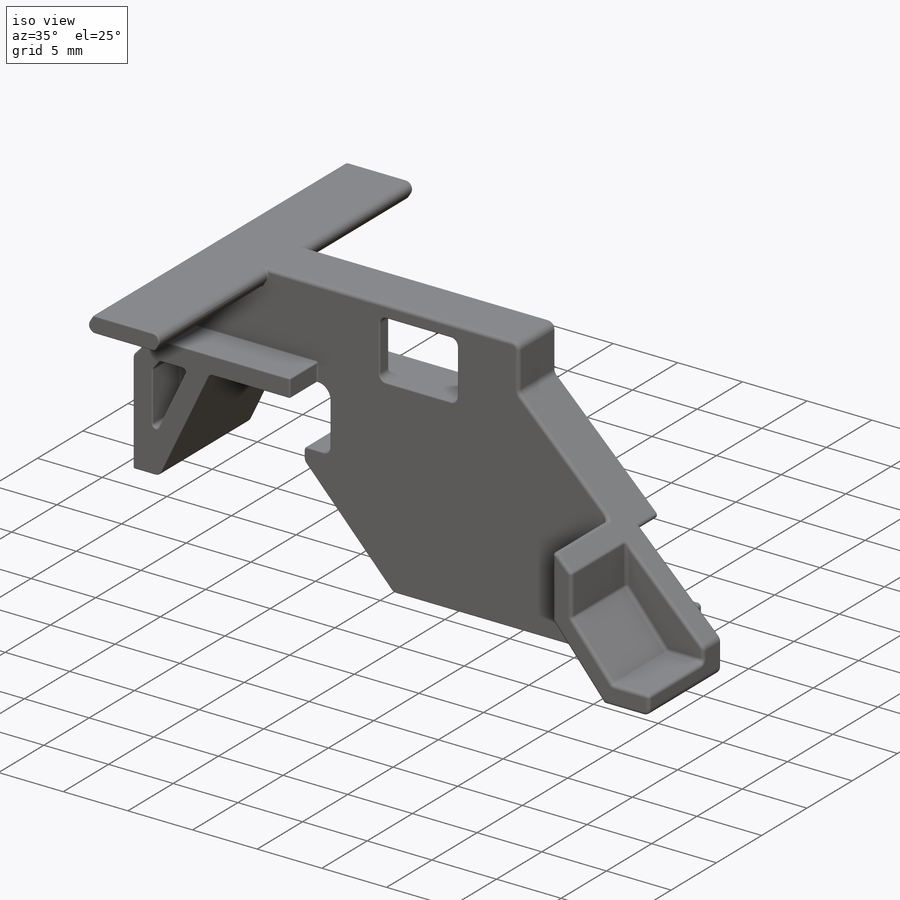
[diagram: iso view]
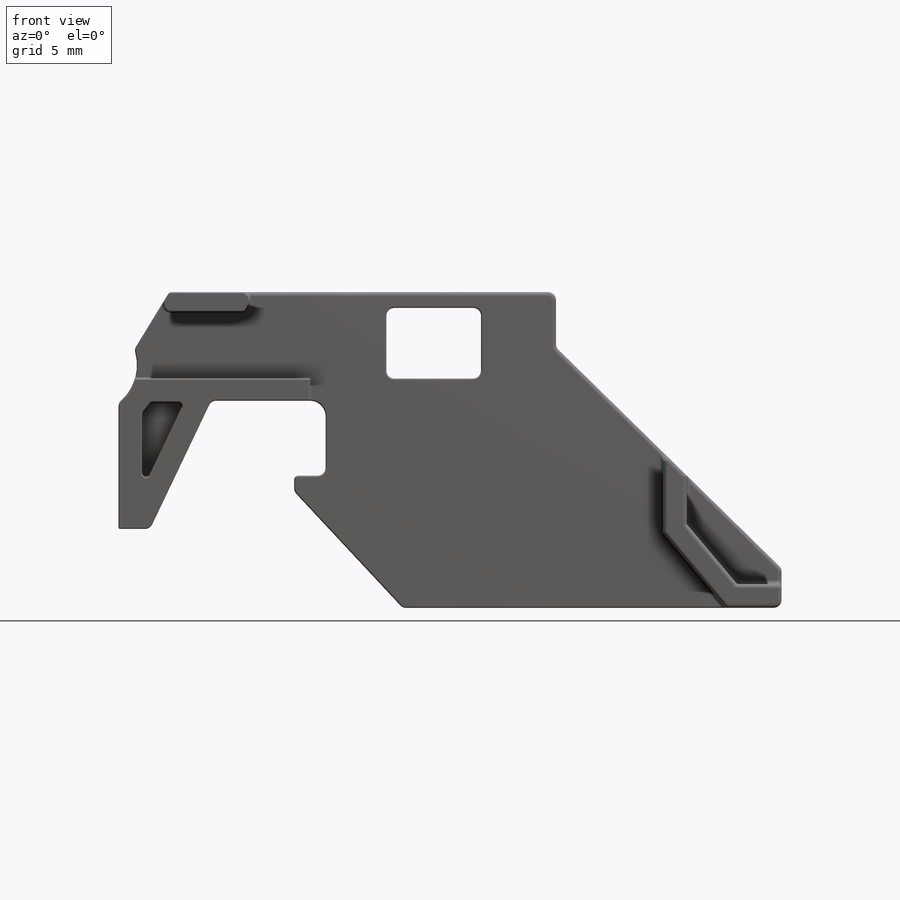
[diagram: front view]
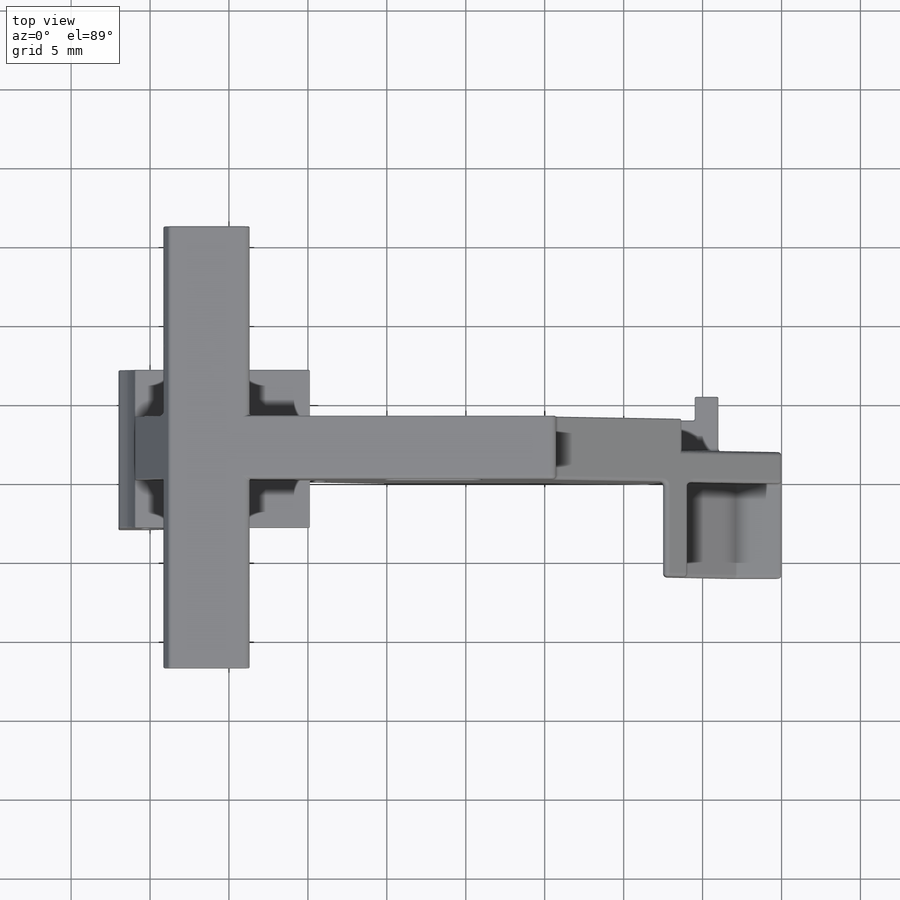
[diagram: top view]
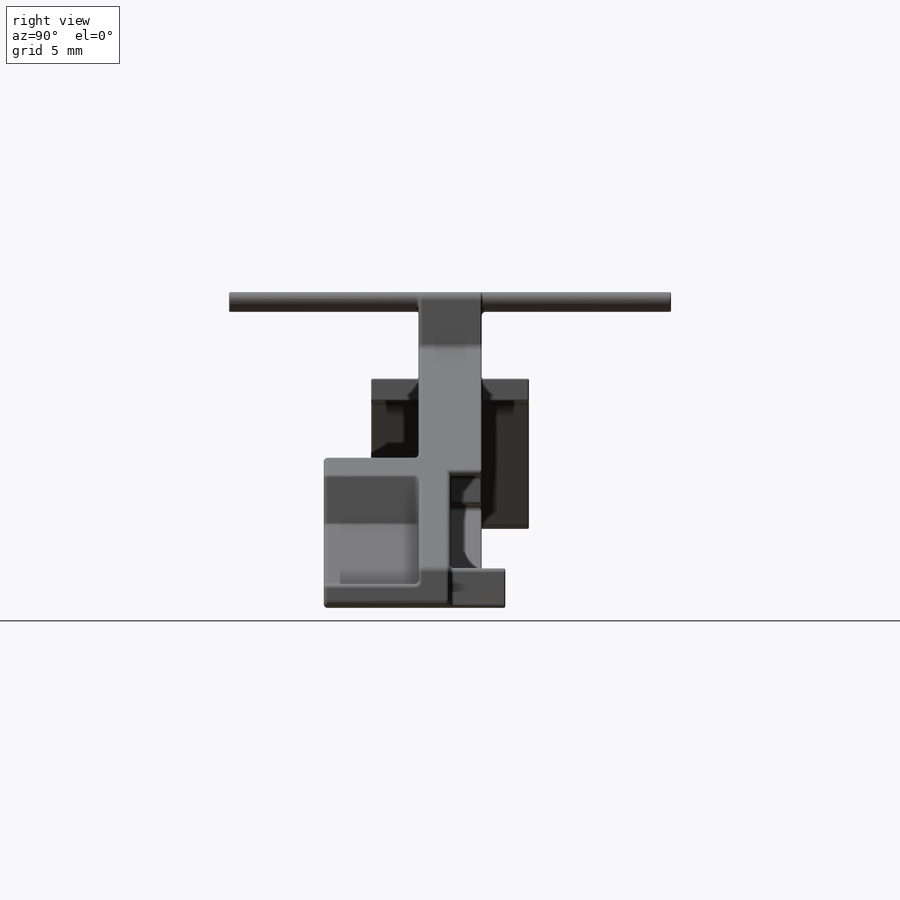
[diagram: right view]
SOLIDWORKS PART (.sldprt)
format: sldprt  version: not decoded by parser v0  size: 1,383,424 bytes
history: native  units: mm
features: sketch x10, fillet x7, extrude x5, cut_extrude x4, material x1, plane x1 (+11 scaffold rows collapsed)
feature tree (39):
  scaffold x11  (default folders/planes/origin — collapsed)
  material  "Material <not specified>"
  sketch  "Sketch1"  dims[c1.D6=~2.843355mm c1.D12=~3.100365mm c1.D18=3.0mm c1.D1=2.5mm c1.D2=20.0mm c1.D3=3.5mm c1.D4=24.5mm c1.D5=4.25mm c2.D6=8.0mm c2.D7=2.0mm c2.D8=9.0mm c2.D9=7.25mm c2.D10=4.75mm c2.D11=2.0mm c2.D12=10.0mm c2.D13=24.5mm c3.D13=~0.14098deg c4.D13=24.5mm c5.D13=~0.14098deg c6.D13=20.0mm c6.D14=42.0mm c6.D15=1.0mm c6.D16=10.0mm c6.D12=24.0mm c6.D17=15.0mm c6.D19=1.0mm c6.D20=24.0mm c7.D20=~132.817424deg c8.D20=~2.817791mm c8.D16=~11.81135mm c9.D16=137.0deg]
  extrude  "Boss-Extrude1"  Depth=4mm
  fillet  "Fillet1"  Radius=1mm
  sketch  "Sketch2"  dims[D1=1.25mm D2=6.25mm]
  extrude  "Boss-Extrude2"  Depth=12mm
  sketch  "Sketch3"  dims[D1=1.5mm]
  extrude  "Boss-Extrude3"  Depth=3mm
  sketch  "Sketch4"  dims[c1.D1=~2.335227mm c1.D2=~5.535352mm c2.D1=6.0mm c2.D2=4.47mm c2.D3=1.0mm c2.D4=4.75mm c2.D5=6.0mm]
  cut_extrude  "Cut-Extrude1"  Depth=14mm
  sketch  "Sketch5"  dims[c1.D1=1.5mm c1.D2=~9.654975mm c2.D2=~179.427004deg c3.D2=1.5mm c3.D3=1.5mm c3.D4=4.75mm c3.D5=7.5mm c3.D6=4.75mm c4.D6=140.0deg]
  extrude  "Boss-Extrude4"  Depth=6mm
  sketch  "Sketch6"  dims[c1.D1=4.0mm c1.D2=2.5mm c1.D3=10.0mm c2.D3=~177.817424deg c3.D3=1.5mm c3.D4=3.0mm c3.D5=0.0mm c3.D6=5.5mm]
  cut_extrude  "Cut-Extrude2"  Depth=2mm
  sketch  "Sketch7"  dims[D1=0.0mm D2=2.0mm D3=1.25mm D4=1.5mm]
  cut_extrude  "Cut-Extrude3"  Depth=2mm
  sketch  "Sketch8"  dims[D1=0.0mm D2=1.25mm D3=1.25mm D4=1.0mm]
  cut_extrude  "Cut-Extrude4"  Depth=3mm
  sketch  "Sketch9"  dims[c1.D1=2.5mm c1.D2=~2.427357mm c2.D1=1.5mm c2.D2=2.5mm]
  extrude  "Boss-Extrude5"  Depth=1.5mm
  fillet  "Fillet2"  Radius=0.5mm
  fillet  "Fillet3"  Radius=0.25mm
  fillet  "Fillet4"  Radius=0.1mm
  fillet  "Fillet5"  Radius=0.1mm
  fillet  "Fillet6"  Radius=0.1mm
  fillet  "Fillet7"  Radius=0.1mm
  plane  "Plane1"  Offset=1mm
  sketch  "Sketch10"  dims[D1=1.5mm D2=0.0mm]
decode coverage: 26 of 26 modeling features carry decoded parameters
note: ~ marks probable driven/reference dimensions
note: suppression state not decoded; provenance and decode notes live in map.json
